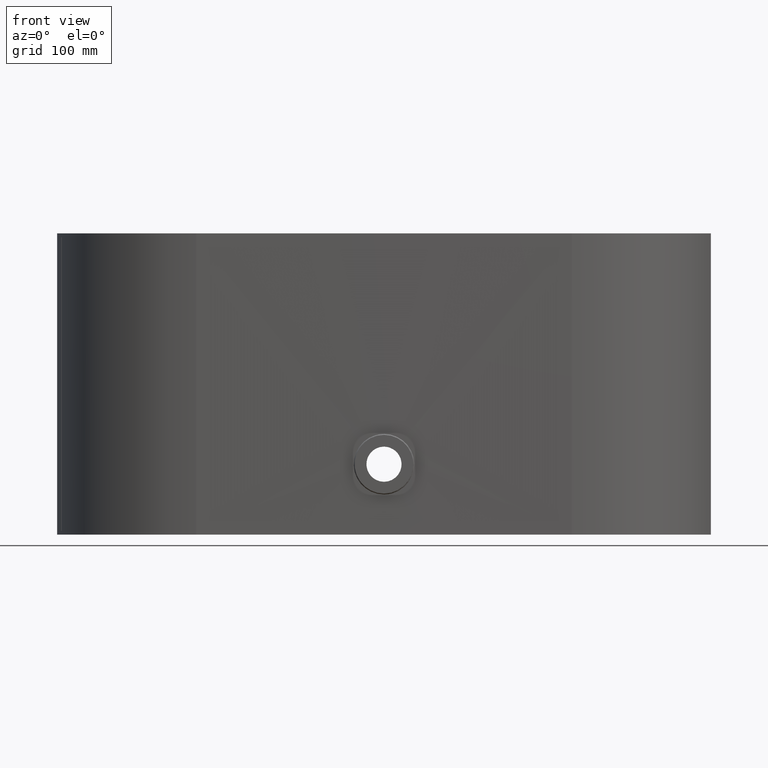
[diagram: clean part render]
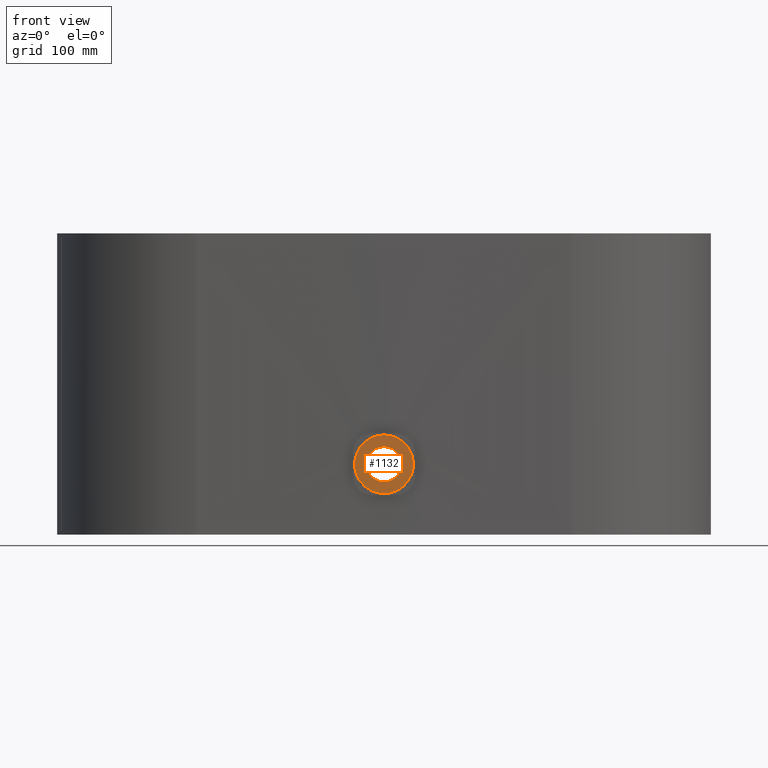
[diagram: same view with one face highlighted and labeled with its STEP entity id]
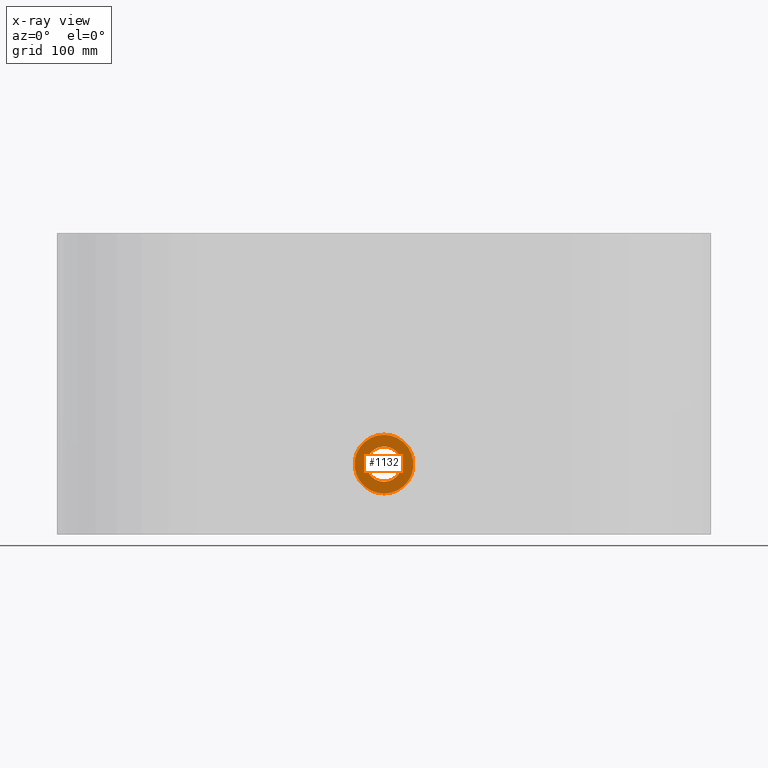
[diagram: x-ray of the same camera — body ghosted, the highlighted face saturated]
A machine part, front view. The second image highlights one B-rep face of the part: STEP entity #1132.
The next image is the same camera in x-ray: the body ghosted, the highlighted face saturated — about 0% of this face is hidden behind the body in this view.
In plain terms, the highlighted planar face has unit normal (0, 1, 0).
Its self-contained STEP definition (entity closure, byte-faithful):
#139 = EDGE_CURVE ( 'NONE', #833, #2824, #2756, .T. ) ;
#266 = VERTEX_POINT ( 'NONE', #2973 ) ;
#335 = ORIENTED_EDGE ( 'NONE', *, *, #139, .T. ) ;
#348 = AXIS2_PLACEMENT_3D ( 'NONE', #1005, #1003, #997 ) ;
#356 = PLANE ( 'NONE',  #1096 ) ;
#537 = CARTESIAN_POINT ( 'NONE',  ( 2.173748068486552000E-014, -165.0000000000000000, -37.50000000000000700 ) ) ;
#547 = VERTEX_POINT ( 'NONE', #537 ) ;
#605 = ORIENTED_EDGE ( 'NONE', *, *, #3259, .T. ) ;
#726 = DIRECTION ( 'NONE',  ( 0.0000000000000000000, 0.0000000000000000000, 1.000000000000000000 ) ) ;
#833 = VERTEX_POINT ( 'NONE', #1682 ) ;
#947 = CARTESIAN_POINT ( 'NONE',  ( 1.714505518806294600E-014, -165.0000000000000000, 0.0000000000000000000 ) ) ;
#953 = DIRECTION ( 'NONE',  ( 0.0000000000000000000, 0.0000000000000000000, 1.000000000000000000 ) ) ;
#954 = DIRECTION ( 'NONE',  ( 0.0000000000000000000, 1.000000000000000000, 0.0000000000000000000 ) ) ;
#958 = CARTESIAN_POINT ( 'NONE',  ( 1.714505518806294600E-014, -165.0000000000000000, 0.0000000000000000000 ) ) ;
#997 = DIRECTION ( 'NONE',  ( 0.0000000000000000000, 0.0000000000000000000, 1.000000000000000000 ) ) ;
#1003 = DIRECTION ( 'NONE',  ( 0.0000000000000000000, 1.000000000000000000, 0.0000000000000000000 ) ) ;
#1005 = CARTESIAN_POINT ( 'NONE',  ( 1.714505518806294600E-014, -165.0000000000000000, 0.0000000000000000000 ) ) ;
#1033 = DIRECTION ( 'NONE',  ( 0.0000000000000000000, 1.000000000000000000, 0.0000000000000000000 ) ) ;
#1096 = AXIS2_PLACEMENT_3D ( 'NONE', #2885, #1033, #2592 ) ;
#1132 = ADVANCED_FACE ( 'NONE', ( #1963, #2597 ), #356, .F. ) ;
#1177 = ORIENTED_EDGE ( 'NONE', *, *, #1772, .F. ) ;
#1276 = EDGE_LOOP ( 'NONE', ( #1177, #1473 ) ) ;
#1343 = CARTESIAN_POINT ( 'NONE',  ( 1.990051048614449300E-014, -165.0000000000000000, -22.50000000000000400 ) ) ;
#1404 = DIRECTION ( 'NONE',  ( 0.0000000000000000000, 1.000000000000000000, 0.0000000000000000000 ) ) ;
#1410 = EDGE_LOOP ( 'NONE', ( #335, #605 ) ) ;
#1473 = ORIENTED_EDGE ( 'NONE', *, *, #3157, .F. ) ;
#1581 = CIRCLE ( 'NONE', #2809, 22.50000000000000400 ) ;
#1682 = CARTESIAN_POINT ( 'NONE',  ( 1.714505518806294600E-014, -165.0000000000000000, 22.50000000000000400 ) ) ;
#1699 = CIRCLE ( 'NONE', #348, 37.50000000000000700 ) ;
#1772 = EDGE_CURVE ( 'NONE', #266, #547, #2429, .T. ) ;
#1963 = FACE_BOUND ( 'NONE', #1410, .T. ) ;
#2205 = AXIS2_PLACEMENT_3D ( 'NONE', #3053, #1404, #2876 ) ;
#2429 = CIRCLE ( 'NONE', #2861, 37.50000000000000700 ) ;
#2502 = DIRECTION ( 'NONE',  ( 0.0000000000000000000, 1.000000000000000000, 0.0000000000000000000 ) ) ;
#2592 = DIRECTION ( 'NONE',  ( 0.0000000000000000000, -0.0000000000000000000, 1.000000000000000000 ) ) ;
#2597 = FACE_OUTER_BOUND ( 'NONE', #1276, .T. ) ;
#2756 = CIRCLE ( 'NONE', #2205, 22.50000000000000400 ) ;
#2809 = AXIS2_PLACEMENT_3D ( 'NONE', #958, #954, #953 ) ;
#2824 = VERTEX_POINT ( 'NONE', #1343 ) ;
#2861 = AXIS2_PLACEMENT_3D ( 'NONE', #947, #2502, #726 ) ;
#2876 = DIRECTION ( 'NONE',  ( 0.0000000000000000000, 0.0000000000000000000, 1.000000000000000000 ) ) ;
#2885 = CARTESIAN_POINT ( 'NONE',  ( 1.714505518806294600E-014, -165.0000000000000000, 0.0000000000000000000 ) ) ;
#2973 = CARTESIAN_POINT ( 'NONE',  ( 1.714505518806294600E-014, -165.0000000000000000, 37.50000000000000700 ) ) ;
#3053 = CARTESIAN_POINT ( 'NONE',  ( 1.714505518806294600E-014, -165.0000000000000000, 0.0000000000000000000 ) ) ;
#3157 = EDGE_CURVE ( 'NONE', #547, #266, #1699, .T. ) ;
#3259 = EDGE_CURVE ( 'NONE', #2824, #833, #1581, .T. ) ;